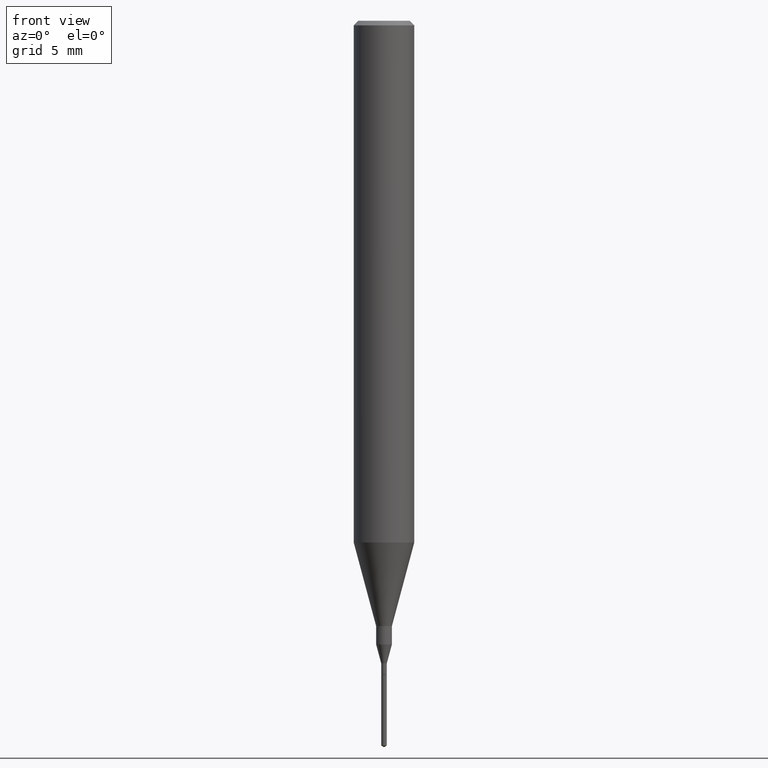
[diagram: clean part render]
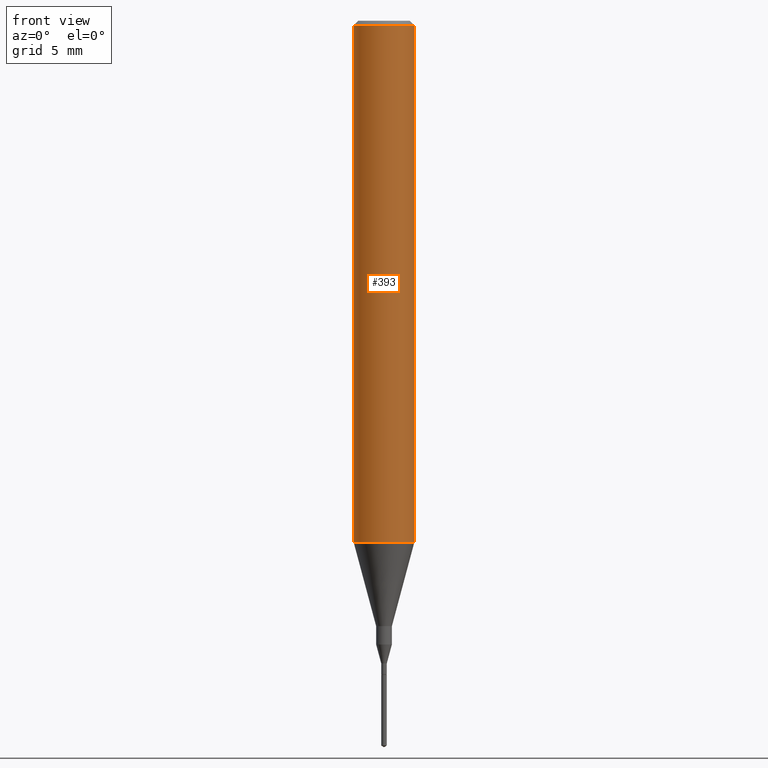
[diagram: same view with one face highlighted and labeled with its STEP entity id]
A machine part, front view. The second image highlights one B-rep face of the part: STEP entity #393.
In plain terms, the highlighted cylindrical surface (edge-blend (fillet) strip) has radius 1.5875 mm, axis along (-0, 0, 1).
Its self-contained STEP definition (entity closure, byte-faithful):
#2 = EDGE_CURVE ( 'NONE', #162, #6, #493, .T. ) ;
#6 = VERTEX_POINT ( 'NONE', #174 ) ;
#9 = CIRCLE ( 'NONE', #370, 0.06250000000000012490 ) ;
#31 = EDGE_LOOP ( 'NONE', ( #84, #100, #153, #91 ) ) ;
#66 = DIRECTION ( 'NONE',  ( -2.445468806185136597E-29, 3.491481338843145583E-15, 1.000000000000000000 ) ) ;
#68 = CARTESIAN_POINT ( 'NONE',  ( 0.000000000000000000, 0.000000000000000000, 0.000000000000000000 ) ) ;
#76 = AXIS2_PLACEMENT_3D ( 'NONE', #292, #108, #392 ) ;
#78 = CARTESIAN_POINT ( 'NONE',  ( -0.06250000000000006939, 4.440892098500631092E-16, -3.074334431409319267E-30 ) ) ;
#84 = ORIENTED_EDGE ( 'NONE', *, *, #2, .F. ) ;
#87 = VECTOR ( 'NONE', #541, 39.37007874015748143 ) ;
#91 = ORIENTED_EDGE ( 'NONE', *, *, #432, .F. ) ;
#100 = ORIENTED_EDGE ( 'NONE', *, *, #295, .T. ) ;
#108 = DIRECTION ( 'NONE',  ( -2.445468806185136597E-29, 3.491481338843145583E-15, 1.000000000000000000 ) ) ;
#122 = DIRECTION ( 'NONE',  ( 1.000000000000000000, -6.982962677686266711E-15, 4.876176775795935793E-29 ) ) ;
#153 = ORIENTED_EDGE ( 'NONE', *, *, #489, .T. ) ;
#162 = VERTEX_POINT ( 'NONE', #178 ) ;
#174 = CARTESIAN_POINT ( 'NONE',  ( -0.06250000000000000000, -1.453125275228401137E-15, -0.009375000000000063838 ) ) ;
#178 = CARTESIAN_POINT ( 'NONE',  ( -0.06250000000000012490, -3.317607122755211895E-15, -1.077392650149939346 ) ) ;
#179 = CIRCLE ( 'NONE', #76, 0.06250000000000000000 ) ;
#231 = AXIS2_PLACEMENT_3D ( 'NONE', #68, #318, #122 ) ;
#292 = CARTESIAN_POINT ( 'NONE',  ( 2.292627005798581061E-31, -3.273263755165471417E-17, -0.009375000000000063838 ) ) ;
#295 = EDGE_CURVE ( 'NONE', #162, #463, #9, .T. ) ;
#311 = VECTOR ( 'NONE', #400, 39.37007874015748143 ) ;
#318 = DIRECTION ( 'NONE',  ( -2.445468806185136597E-29, 3.491481338843145583E-15, 1.000000000000000000 ) ) ;
#370 = AXIS2_PLACEMENT_3D ( 'NONE', #419, #66, #578 ) ;
#392 = DIRECTION ( 'NONE',  ( 1.000000000000000000, -6.982962677686266711E-15, 0.000000000000000000 ) ) ;
#393 = ADVANCED_FACE ( 'NONE', ( #487 ), #495, .T. ) ;
#400 = DIRECTION ( 'NONE',  ( -2.445468806185136877E-29, 3.491481338843145188E-15, 1.000000000000000000 ) ) ;
#419 = CARTESIAN_POINT ( 'NONE',  ( 2.634730117954813298E-29, -3.761696332605275695E-15, -1.077392650149939346 ) ) ;
#431 = CARTESIAN_POINT ( 'NONE',  ( 0.06250000000000012490, -4.198131499960668153E-15, -1.077392650149939346 ) ) ;
#432 = EDGE_CURVE ( 'NONE', #6, #550, #179, .T. ) ;
#444 = CARTESIAN_POINT ( 'NONE',  ( 0.06250000000000000000, -4.691678049070463404E-16, -0.009375000000000063838 ) ) ;
#463 = VERTEX_POINT ( 'NONE', #431 ) ;
#473 = LINE ( 'NONE', #534, #311 ) ;
#487 = FACE_OUTER_BOUND ( 'NONE', #31, .T. ) ;
#489 = EDGE_CURVE ( 'NONE', #463, #550, #473, .T. ) ;
#493 = LINE ( 'NONE', #78, #87 ) ;
#495 = CYLINDRICAL_SURFACE ( 'NONE', #231, 0.06250000000000006939 ) ;
#534 = CARTESIAN_POINT ( 'NONE',  ( 0.06250000000000006939, -4.364351673553921624E-16, 3.047610484872463374E-30 ) ) ;
#541 = DIRECTION ( 'NONE',  ( -2.445468806185136877E-29, 3.491481338843145188E-15, 1.000000000000000000 ) ) ;
#550 = VERTEX_POINT ( 'NONE', #444 ) ;
#578 = DIRECTION ( 'NONE',  ( 1.000000000000000000, -6.982962677686264344E-15, 0.000000000000000000 ) ) ;